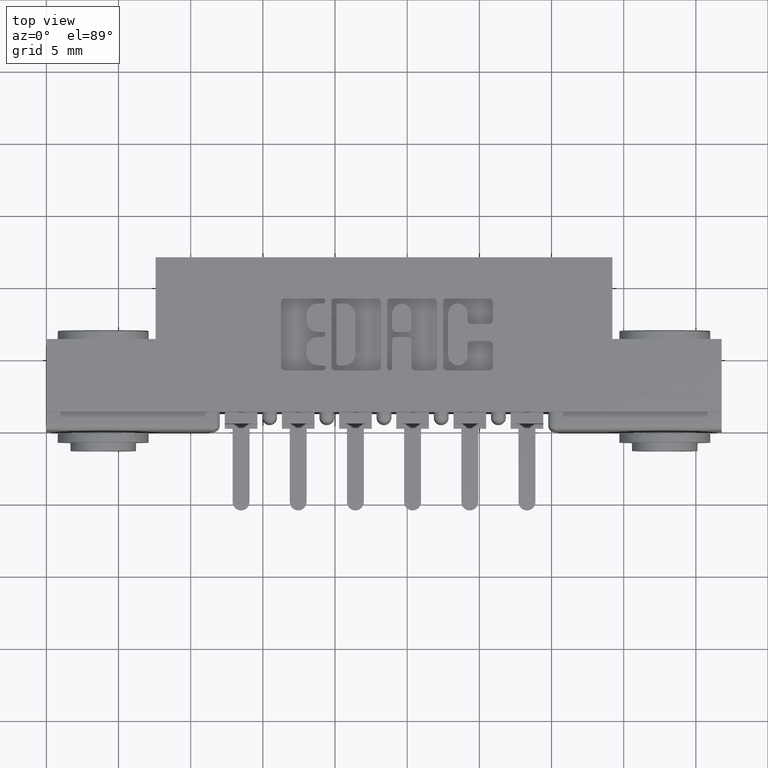
[diagram: clean part render]
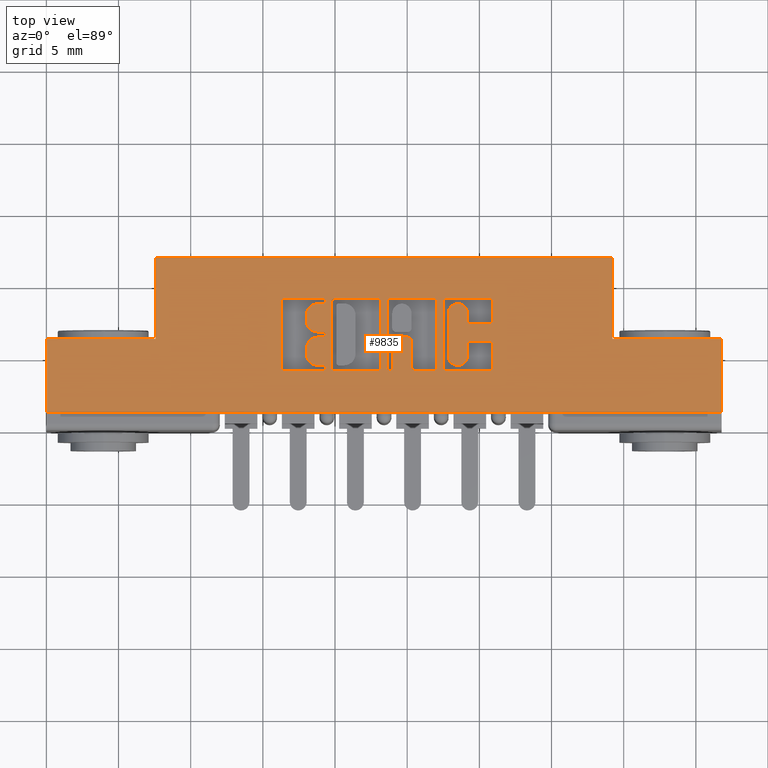
[diagram: same view with one face highlighted and labeled with its STEP entity id]
A machine part, top view. The second image highlights one B-rep face of the part: STEP entity #9835.
In plain terms, the highlighted planar face has unit normal (0, 0, -1).
Its self-contained STEP definition (entity closure, byte-faithful):
#2 = AXIS2_PLACEMENT_3D ( 'NONE', #10767, #9928, #2937 ) ;
#29 = CIRCLE ( 'NONE', #9185, 0.03141014465217454400 ) ;
#37 = CARTESIAN_POINT ( 'NONE',  ( 1.158293827176977600, 0.2909562271012335900, 0.0000000000000000000 ) ) ;
#66 = ORIENTED_EDGE ( 'NONE', *, *, #972, .F. ) ;
#85 = DIRECTION ( 'NONE',  ( -1.000000000000000000, 0.0000000000000000000, 0.0000000000000000000 ) ) ;
#90 = VERTEX_POINT ( 'NONE', #1101 ) ;
#115 = EDGE_CURVE ( 'NONE', #2119, #937, #9789, .T. ) ;
#134 = CIRCLE ( 'NONE', #6695, 0.006870969142657995000 ) ;
#160 = VERTEX_POINT ( 'NONE', #7551 ) ;
#186 = EDGE_CURVE ( 'NONE', #3596, #7757, #1127, .T. ) ;
#193 = DIRECTION ( 'NONE',  ( 1.000000000000000000, 0.0000000000000000000, 0.0000000000000000000 ) ) ;
#197 = AXIS2_PLACEMENT_3D ( 'NONE', #11165, #9494, #4167 ) ;
#216 = LINE ( 'NONE', #8390, #490 ) ;
#230 = VERTEX_POINT ( 'NONE', #7504 ) ;
#241 = AXIS2_PLACEMENT_3D ( 'NONE', #7334, #1249, #447 ) ;
#254 = LINE ( 'NONE', #8235, #7962 ) ;
#256 = LINE ( 'NONE', #8256, #4941 ) ;
#264 = FACE_BOUND ( 'NONE', #1898, .T. ) ;
#282 = ORIENTED_EDGE ( 'NONE', *, *, #7625, .F. ) ;
#326 = DIRECTION ( 'NONE',  ( 1.000000000000000000, 0.0000000000000000000, 0.0000000000000000000 ) ) ;
#365 = VERTEX_POINT ( 'NONE', #7738 ) ;
#395 = LINE ( 'NONE', #3843, #8628 ) ;
#406 = ORIENTED_EDGE ( 'NONE', *, *, #9091, .F. ) ;
#435 = EDGE_CURVE ( 'NONE', #1224, #4848, #2381, .T. ) ;
#441 = AXIS2_PLACEMENT_3D ( 'NONE', #2741, #9749, #6103 ) ;
#447 = DIRECTION ( 'NONE',  ( 1.000000000000000000, 0.0000000000000000000, 0.0000000000000000000 ) ) ;
#453 = DIRECTION ( 'NONE',  ( 0.0000000000000000000, -1.000000000000000000, 0.0000000000000000000 ) ) ;
#457 = AXIS2_PLACEMENT_3D ( 'NONE', #10255, #7732, #1539 ) ;
#460 = DIRECTION ( 'NONE',  ( -0.0000000000000000000, 0.0000000000000000000, 1.000000000000000000 ) ) ;
#468 = ORIENTED_EDGE ( 'NONE', *, *, #6072, .F. ) ;
#485 = VERTEX_POINT ( 'NONE', #9642 ) ;
#490 = VECTOR ( 'NONE', #1396, 39.37007874015748100 ) ;
#504 = CARTESIAN_POINT ( 'NONE',  ( 0.9295887114283312200, 0.3503410318342100000, 0.0000000000000000000 ) ) ;
#524 = VECTOR ( 'NONE', #4498, 39.37007874015748100 ) ;
#540 = VECTOR ( 'NONE', #9377, 39.37007874015748100 ) ;
#549 = ORIENTED_EDGE ( 'NONE', *, *, #11010, .F. ) ;
#566 = VECTOR ( 'NONE', #1109, 39.37007874015748100 ) ;
#571 = EDGE_CURVE ( 'NONE', #937, #7979, #1825, .T. ) ;
#585 = EDGE_CURVE ( 'NONE', #3293, #9052, #11269, .T. ) ;
#617 = VERTEX_POINT ( 'NONE', #5352 ) ;
#622 = VECTOR ( 'NONE', #6580, 39.37007874015748100 ) ;
#634 = DIRECTION ( 'NONE',  ( 0.0000000000000000000, 1.000000000000000000, -0.0000000000000000000 ) ) ;
#637 = VERTEX_POINT ( 'NONE', #2764 ) ;
#650 = CARTESIAN_POINT ( 'NONE',  ( 0.7610045756779980600, 0.1707142671046479000, 0.0000000000000000000 ) ) ;
#660 = CIRCLE ( 'NONE', #1926, 0.009815670203841039800 ) ;
#661 = CARTESIAN_POINT ( 'NONE',  ( 0.7541336065353102500, 0.2620000000000202700, 0.0000000000000000000 ) ) ;
#684 = EDGE_LOOP ( 'NONE', ( #3775, #2766, #7573, #8923, #9858, #11051, #10013, #9149, #7669, #7382, #10817, #910, #8126, #6589 ) ) ;
#685 = CARTESIAN_POINT ( 'NONE',  ( 0.9433306497136472200, 0.0000000000000000000, 0.0000000000000000000 ) ) ;
#697 = DIRECTION ( 'NONE',  ( 1.000000000000000000, 0.0000000000000000000, 0.0000000000000000000 ) ) ;
#720 = CARTESIAN_POINT ( 'NONE',  ( 0.0000000000000000000, 0.4729999999999999800, 0.0000000000000000000 ) ) ;
#728 = DIRECTION ( 'NONE',  ( 0.0000000000000000000, 1.000000000000000000, -0.0000000000000000000 ) ) ;
#769 = CARTESIAN_POINT ( 'NONE',  ( 0.0000000000000000000, 0.05099999999999999700, 0.0000000000000000000 ) ) ;
#772 = ORIENTED_EDGE ( 'NONE', *, *, #1240, .F. ) ;
#828 = CARTESIAN_POINT ( 'NONE',  ( 1.092038053301265700, 0.1638432979619831300, 0.0000000000000000000 ) ) ;
#843 = LINE ( 'NONE', #9636, #2655 ) ;
#846 = CARTESIAN_POINT ( 'NONE',  ( 0.6498421106199189200, 0.1638432979619849400, 0.0000000000000000000 ) ) ;
#850 = CARTESIAN_POINT ( 'NONE',  ( 1.122221239177999100, 0.2038421540424529300, 0.0000000000000000000 ) ) ;
#851 = CIRCLE ( 'NONE', #457, 0.03141014465218178200 ) ;
#891 = DIRECTION ( 'NONE',  ( 1.000000000000000000, 0.0000000000000000000, 0.0000000000000000000 ) ) ;
#910 = ORIENTED_EDGE ( 'NONE', *, *, #1816, .F. ) ;
#914 = ORIENTED_EDGE ( 'NONE', *, *, #8202, .F. ) ;
#937 = VERTEX_POINT ( 'NONE', #10056 ) ;
#972 = EDGE_CURVE ( 'NONE', #8061, #2438, #6912, .T. ) ;
#1029 = DIRECTION ( 'NONE',  ( -0.0000000000000000000, 0.0000000000000000000, 1.000000000000000000 ) ) ;
#1045 = ORIENTED_EDGE ( 'NONE', *, *, #10996, .F. ) ;
#1055 = VERTEX_POINT ( 'NONE', #650 ) ;
#1056 = DIRECTION ( 'NONE',  ( 0.0000000000000000000, 0.0000000000000000000, -1.000000000000000000 ) ) ;
#1097 = DIRECTION ( 'NONE',  ( 1.000000000000000000, 0.0000000000000000000, 0.0000000000000000000 ) ) ;
#1098 = CIRCLE ( 'NONE', #11077, 0.009815670203796511200 ) ;
#1100 = CARTESIAN_POINT ( 'NONE',  ( 1.082222383097458900, 0.3503410318342100000, 0.0000000000000000000 ) ) ;
#1101 = CARTESIAN_POINT ( 'NONE',  ( 0.7541336064153890700, 0.2551290308573567800, 0.0000000000000000000 ) ) ;
#1109 = DIRECTION ( 'NONE',  ( 1.000000000000000000, 0.0000000000000000000, 0.0000000000000000000 ) ) ;
#1114 = CARTESIAN_POINT ( 'NONE',  ( 0.7541336065353515500, 0.3532857328953861700, 0.0000000000000000000 ) ) ;
#1127 = CIRCLE ( 'NONE', #5899, 0.009815670203840084000 ) ;
#1131 = DIRECTION ( 'NONE',  ( 1.000000000000000000, 0.0000000000000000000, 0.0000000000000000000 ) ) ;
#1134 = VERTEX_POINT ( 'NONE', #1811 ) ;
#1200 = VERTEX_POINT ( 'NONE', #2742 ) ;
#1224 = VERTEX_POINT ( 'NONE', #37 ) ;
#1240 = EDGE_CURVE ( 'NONE', #8769, #3172, #8945, .T. ) ;
#1246 = VERTEX_POINT ( 'NONE', #4362 ) ;
#1249 = DIRECTION ( 'NONE',  ( -0.0000000000000000000, 0.0000000000000000000, 1.000000000000000000 ) ) ;
#1253 = EDGE_CURVE ( 'NONE', #10107, #4215, #4164, .T. ) ;
#1285 = VERTEX_POINT ( 'NONE', #8162 ) ;
#1290 = EDGE_CURVE ( 'NONE', #4215, #9331, #10588, .T. ) ;
#1305 = EDGE_CURVE ( 'NONE', #6060, #7967, #8667, .T. ) ;
#1321 = VERTEX_POINT ( 'NONE', #9003 ) ;
#1372 = DIRECTION ( 'NONE',  ( -0.0000000000000000000, -1.000000000000000000, -0.0000000000000000000 ) ) ;
#1377 = EDGE_CURVE ( 'NONE', #8281, #10974, #7306, .T. ) ;
#1396 = DIRECTION ( 'NONE',  ( -1.000000000000000000, 0.0000000000000000000, 0.0000000000000000000 ) ) ;
#1422 = CARTESIAN_POINT ( 'NONE',  ( -0.0000000000000000000, 0.2909562271012335900, 0.0000000000000000000 ) ) ;
#1443 = EDGE_CURVE ( 'NONE', #617, #8143, #4578, .T. ) ;
#1448 = CARTESIAN_POINT ( 'NONE',  ( 0.6400264404161156700, 0.1736589681657899100, 0.0000000000000000000 ) ) ;
#1456 = DIRECTION ( 'NONE',  ( 1.000000000000000000, 0.0000000000000000000, 0.0000000000000000000 ) ) ;
#1465 = DIRECTION ( 'NONE',  ( 1.000000000000000000, 0.0000000000000000000, 0.0000000000000000000 ) ) ;
#1504 = ORIENTED_EDGE ( 'NONE', *, *, #5172, .T. ) ;
#1518 = CARTESIAN_POINT ( 'NONE',  ( 0.9025956183678963700, 0.3601567020380510000, 0.0000000000000000000 ) ) ;
#1539 = DIRECTION ( 'NONE',  ( 1.000000000000000000, 0.0000000000000000000, 0.0000000000000000000 ) ) ;
#1615 = ORIENTED_EDGE ( 'NONE', *, *, #5111, .F. ) ;
#1626 = DIRECTION ( 'NONE',  ( -0.0000000000000000000, 0.0000000000000000000, 1.000000000000000000 ) ) ;
#1638 = AXIS2_PLACEMENT_3D ( 'NONE', #850, #8715, #5277 ) ;
#1643 = ORIENTED_EDGE ( 'NONE', *, *, #435, .F. ) ;
#1654 = CARTESIAN_POINT ( 'NONE',  ( 0.9025956183678282000, 0.3503410318342098900, 0.0000000000000000000 ) ) ;
#1665 = CARTESIAN_POINT ( 'NONE',  ( 0.9295887114283312200, 0.0000000000000000000, 0.0000000000000000000 ) ) ;
#1730 = DIRECTION ( 'NONE',  ( 1.000000000000000000, -0.0000000000000000000, 0.0000000000000000000 ) ) ;
#1769 = EDGE_LOOP ( 'NONE', ( #549, #772, #6414, #6158, #3465, #10356, #4662, #4700 ) ) ;
#1782 = DIRECTION ( 'NONE',  ( 1.000000000000000000, 0.0000000000000000000, 0.0000000000000000000 ) ) ;
#1802 = VECTOR ( 'NONE', #10739, 39.37007874015748100 ) ;
#1811 = CARTESIAN_POINT ( 'NONE',  ( 1.148478156973179200, 0.2038421540424529300, 0.0000000000000000000 ) ) ;
#1816 = EDGE_CURVE ( 'NONE', #3293, #6017, #134, .T. ) ;
#1825 = CIRCLE ( 'NONE', #2706, 0.009815670203787086500 ) ;
#1826 = AXIS2_PLACEMENT_3D ( 'NONE', #6116, #11313, #3375 ) ;
#1837 = AXIS2_PLACEMENT_3D ( 'NONE', #720, #1056, #5414 ) ;
#1869 = CARTESIAN_POINT ( 'NONE',  ( 0.7541336065353515500, 0.3601567020380326800, 0.0000000000000000000 ) ) ;
#1896 = LINE ( 'NONE', #10295, #8616 ) ;
#1898 = EDGE_LOOP ( 'NONE', ( #6988, #2913, #4558, #9803, #10766, #406, #9904, #10678, #5652, #1504, #10569, #1045, #4798, #10533, #6349, #7975, #914, #4945, #1615, #6331, #9107 ) ) ;
#1911 = AXIS2_PLACEMENT_3D ( 'NONE', #1114, #1029, #2828 ) ;
#1926 = AXIS2_PLACEMENT_3D ( 'NONE', #1654, #8534, #6073 ) ;
#1956 = CARTESIAN_POINT ( 'NONE',  ( 0.7406370600051257500, 0.3150046191005197400, 0.0000000000000000000 ) ) ;
#1965 = DIRECTION ( 'NONE',  ( 1.000000000000000000, 0.0000000000000000000, 0.0000000000000000000 ) ) ;
#1967 = CARTESIAN_POINT ( 'NONE',  ( 1.217678631909972400, 0.3503410318341947400, 0.0000000000000000000 ) ) ;
#1974 = ORIENTED_EDGE ( 'NONE', *, *, #2601, .F. ) ;
#1986 = CARTESIAN_POINT ( 'NONE',  ( -0.0000000000000000000, 0.1638432979619831300, 0.0000000000000000000 ) ) ;
#1987 = AXIS2_PLACEMENT_3D ( 'NONE', #3039, #10141, #5703 ) ;
#1990 = ORIENTED_EDGE ( 'NONE', *, *, #3891, .T. ) ;
#1991 = CARTESIAN_POINT ( 'NONE',  ( -2.111779678676719100E-014, 0.1775852362472204700, 0.0000000000000000000 ) ) ;
#1998 = LINE ( 'NONE', #4738, #7493 ) ;
#2027 = VECTOR ( 'NONE', #7860, 39.37007874015748100 ) ;
#2051 = DIRECTION ( 'NONE',  ( -0.0000000000000000000, 0.0000000000000000000, 1.000000000000000000 ) ) ;
#2110 = EDGE_CURVE ( 'NONE', #2426, #8143, #6148, .T. ) ;
#2119 = VERTEX_POINT ( 'NONE', #8565 ) ;
#2183 = EDGE_CURVE ( 'NONE', #6761, #2438, #5033, .T. ) ;
#2221 = EDGE_CURVE ( 'NONE', #10968, #1246, #6240, .T. ) ;
#2260 = VERTEX_POINT ( 'NONE', #2680 ) ;
#2261 = CARTESIAN_POINT ( 'NONE',  ( 0.9394043816321276900, 0.3503410318342100000, 0.0000000000000000000 ) ) ;
#2299 = ORIENTED_EDGE ( 'NONE', *, *, #8778, .F. ) ;
#2311 = DIRECTION ( 'NONE',  ( 0.0000000000000000000, -1.000000000000000000, 0.0000000000000000000 ) ) ;
#2364 = EDGE_CURVE ( 'NONE', #6711, #1055, #8437, .T. ) ;
#2365 = CARTESIAN_POINT ( 'NONE',  ( 0.7867707099630104600, 0.3601567020380510000, 0.0000000000000000000 ) ) ;
#2381 = LINE ( 'NONE', #1422, #6788 ) ;
#2383 = DIRECTION ( 'NONE',  ( -0.0000000000000000000, 0.0000000000000000000, 1.000000000000000000 ) ) ;
#2415 = AXIS2_PLACEMENT_3D ( 'NONE', #11362, #4496, #1782 ) ;
#2426 = VERTEX_POINT ( 'NONE', #3095 ) ;
#2438 = VERTEX_POINT ( 'NONE', #3893 ) ;
#2452 = VERTEX_POINT ( 'NONE', #8321 ) ;
#2505 = VECTOR ( 'NONE', #2954, 39.37007874015748100 ) ;
#2532 = VERTEX_POINT ( 'NONE', #7532 ) ;
#2536 = VECTOR ( 'NONE', #7988, 39.37007874015748100 ) ;
#2576 = CARTESIAN_POINT ( 'NONE',  ( 1.158293827176977600, 0.3007718973050451700, 0.0000000000000000000 ) ) ;
#2585 = ORIENTED_EDGE ( 'NONE', *, *, #115, .F. ) ;
#2591 = CARTESIAN_POINT ( 'NONE',  ( 1.055229290037011900, 0.3503410318342102800, 0.0000000000000000000 ) ) ;
#2601 = EDGE_CURVE ( 'NONE', #10117, #10787, #8734, .T. ) ;
#2612 = VERTEX_POINT ( 'NONE', #1448 ) ;
#2655 = VECTOR ( 'NONE', #1730, 39.37007874015748100 ) ;
#2680 = CARTESIAN_POINT ( 'NONE',  ( 1.207862961706134500, 0.1638432979619831300, 0.0000000000000000000 ) ) ;
#2706 = AXIS2_PLACEMENT_3D ( 'NONE', #9677, #1626, #4471 ) ;
#2723 = CARTESIAN_POINT ( 'NONE',  ( 1.207862961706167400, 0.2909562271012335900, 0.0000000000000000000 ) ) ;
#2733 = LINE ( 'NONE', #8987, #7142 ) ;
#2741 = CARTESIAN_POINT ( 'NONE',  ( 1.092038053301265700, 0.1736589681657899100, 0.0000000000000000000 ) ) ;
#2742 = CARTESIAN_POINT ( 'NONE',  ( 1.217678631909972400, 0.3007718973050385600, 0.0000000000000000000 ) ) ;
#2752 = CIRCLE ( 'NONE', #3241, 0.009815670203805798900 ) ;
#2764 = CARTESIAN_POINT ( 'NONE',  ( 0.7541336065353102500, 0.2688709691426837700, 0.0000000000000000000 ) ) ;
#2766 = ORIENTED_EDGE ( 'NONE', *, *, #11162, .F. ) ;
#2781 = CARTESIAN_POINT ( 'NONE',  ( 0.0000000000000000000, 0.3601567020380510000, 0.0000000000000000000 ) ) ;
#2791 = CARTESIAN_POINT ( 'NONE',  ( 0.0000000000000000000, 0.3601567020380510000, 0.0000000000000000000 ) ) ;
#2797 = EDGE_CURVE ( 'NONE', #6761, #2532, #10785, .T. ) ;
#2798 = CARTESIAN_POINT ( 'NONE',  ( 0.9025956183678624000, 0.1736589681657899100, 0.0000000000000000000 ) ) ;
#2819 = ORIENTED_EDGE ( 'NONE', *, *, #1290, .F. ) ;
#2828 = DIRECTION ( 'NONE',  ( 1.000000000000000000, 0.0000000000000000000, 0.0000000000000000000 ) ) ;
#2848 = VERTEX_POINT ( 'NONE', #9650 ) ;
#2913 = ORIENTED_EDGE ( 'NONE', *, *, #9655, .F. ) ;
#2918 = VECTOR ( 'NONE', #8901, 39.37007874015748100 ) ;
#2937 = DIRECTION ( 'NONE',  ( 1.000000000000000000, 0.0000000000000000000, 0.0000000000000000000 ) ) ;
#2954 = DIRECTION ( 'NONE',  ( 1.000000000000000000, 0.0000000000000000000, 0.0000000000000000000 ) ) ;
#2986 = LINE ( 'NONE', #9521, #7505 ) ;
#2993 = EDGE_CURVE ( 'NONE', #10555, #637, #11317, .T. ) ;
#3009 = CARTESIAN_POINT ( 'NONE',  ( 1.055229290037014200, 0.3601567020380065400, 0.0000000000000000000 ) ) ;
#3039 = CARTESIAN_POINT ( 'NONE',  ( 0.7541336065353515500, 0.3532857328953861700, 0.0000000000000000000 ) ) ;
#3046 = DIRECTION ( 'NONE',  ( 1.000000000000000000, 0.0000000000000000000, 0.0000000000000000000 ) ) ;
#3086 = CARTESIAN_POINT ( 'NONE',  ( 0.7092269153529280300, 0.0000000000000000000, 0.0000000000000000000 ) ) ;
#3095 = CARTESIAN_POINT ( 'NONE',  ( 0.7406370600050843400, 0.2551290308573567800, 0.0000000000000000000 ) ) ;
#3107 = EDGE_CURVE ( 'NONE', #5942, #6711, #1998, .T. ) ;
#3172 = VERTEX_POINT ( 'NONE', #5555 ) ;
#3185 = VERTEX_POINT ( 'NONE', #5852 ) ;
#3191 = VECTOR ( 'NONE', #9459, 39.37007874015748100 ) ;
#3241 = AXIS2_PLACEMENT_3D ( 'NONE', #9766, #4540, #3578 ) ;
#3293 = VERTEX_POINT ( 'NONE', #4816 ) ;
#3302 = VERTEX_POINT ( 'NONE', #10890 ) ;
#3308 = LINE ( 'NONE', #4433, #524 ) ;
#3322 = CARTESIAN_POINT ( 'NONE',  ( 0.9433306497136472200, 0.2453133606535455300, 0.0000000000000000000 ) ) ;
#3375 = DIRECTION ( 'NONE',  ( 1.000000000000000000, 0.0000000000000000000, 0.0000000000000000000 ) ) ;
#3404 = VECTOR ( 'NONE', #634, 39.37007874015748100 ) ;
#3465 = ORIENTED_EDGE ( 'NONE', *, *, #9995, .F. ) ;
#3471 = CARTESIAN_POINT ( 'NONE',  ( 0.0000000000000000000, 0.3601567020380326800, 0.0000000000000000000 ) ) ;
#3478 = CARTESIAN_POINT ( 'NONE',  ( 0.7541336065353102500, 0.2620000000000202700, 0.0000000000000000000 ) ) ;
#3495 = DIRECTION ( 'NONE',  ( -0.0000000000000000000, 0.0000000000000000000, 1.000000000000000000 ) ) ;
#3572 = VERTEX_POINT ( 'NONE', #10676 ) ;
#3578 = DIRECTION ( 'NONE',  ( 1.000000000000000000, 0.0000000000000000000, 0.0000000000000000000 ) ) ;
#3596 = VERTEX_POINT ( 'NONE', #1967 ) ;
#3614 = LINE ( 'NONE', #1991, #6235 ) ;
#3647 = CARTESIAN_POINT ( 'NONE',  ( 0.7092269153529097100, 0.3002811137948582800, 0.0000000000000000000 ) ) ;
#3719 = CARTESIAN_POINT ( 'NONE',  ( 0.4729999999999998600, 0.05099999999999999700, 0.0000000000000000000 ) ) ;
#3756 = DIRECTION ( 'NONE',  ( -1.000000000000000000, -1.189163988687022500E-013, 0.0000000000000000000 ) ) ;
#3768 = EDGE_CURVE ( 'NONE', #1285, #1321, #4345, .T. ) ;
#3775 = ORIENTED_EDGE ( 'NONE', *, *, #1305, .T. ) ;
#3789 = VECTOR ( 'NONE', #2311, 39.37007874015748100 ) ;
#3843 = CARTESIAN_POINT ( 'NONE',  ( 1.148478156973179200, 0.0000000000000000000, 0.0000000000000000000 ) ) ;
#3848 = CIRCLE ( 'NONE', #241, 0.009815670203803203800 ) ;
#3891 = EDGE_CURVE ( 'NONE', #3572, #9163, #10883, .T. ) ;
#3893 = CARTESIAN_POINT ( 'NONE',  ( 1.095964321382818700, 0.3201578459575295000, 0.0000000000000000000 ) ) ;
#3961 = LINE ( 'NONE', #3719, #7944 ) ;
#4005 = CARTESIAN_POINT ( 'NONE',  ( 1.095964321382818700, 0.2038421540424529300, 0.0000000000000000000 ) ) ;
#4026 = CIRCLE ( 'NONE', #6389, 0.009815670203806891800 ) ;
#4044 = CARTESIAN_POINT ( 'NONE',  ( 1.082222383097458900, 0.0000000000000000000, 0.0000000000000000000 ) ) ;
#4133 = LINE ( 'NONE', #8471, #540 ) ;
#4141 = EDGE_CURVE ( 'NONE', #10787, #10500, #4620, .T. ) ;
#4164 = LINE ( 'NONE', #6137, #1802 ) ;
#4167 = DIRECTION ( 'NONE',  ( 1.000000000000000000, 0.0000000000000000000, 0.0000000000000000000 ) ) ;
#4179 = EDGE_CURVE ( 'NONE', #8947, #11213, #9512, .T. ) ;
#4196 = DIRECTION ( 'NONE',  ( -0.0000000000000000000, 1.000000000000000000, -0.0000000000000000000 ) ) ;
#4215 = VERTEX_POINT ( 'NONE', #8972 ) ;
#4246 = VERTEX_POINT ( 'NONE', #5527 ) ;
#4257 = EDGE_CURVE ( 'NONE', #10156, #485, #4613, .T. ) ;
#4283 = ORIENTED_EDGE ( 'NONE', *, *, #2797, .F. ) ;
#4345 = CIRCLE ( 'NONE', #4658, 0.009815670203796920600 ) ;
#4362 = CARTESIAN_POINT ( 'NONE',  ( 1.005660155507786000, 0.1638432979619845200, 0.0000000000000000000 ) ) ;
#4367 = AXIS2_PLACEMENT_3D ( 'NONE', #6539, #4664, #326 ) ;
#4409 = CIRCLE ( 'NONE', #7239, 0.006870969142662229500 ) ;
#4433 = CARTESIAN_POINT ( 'NONE',  ( 1.842000000000000700, 0.4729999999999999800, 0.0000000000000000000 ) ) ;
#4471 = DIRECTION ( 'NONE',  ( 1.000000000000000000, 0.0000000000000000000, 0.0000000000000000000 ) ) ;
#4496 = DIRECTION ( 'NONE',  ( -0.0000000000000000000, 0.0000000000000000000, 1.000000000000000000 ) ) ;
#4498 = DIRECTION ( 'NONE',  ( -0.0000000000000000000, -1.000000000000000000, -0.0000000000000000000 ) ) ;
#4540 = DIRECTION ( 'NONE',  ( -0.0000000000000000000, 0.0000000000000000000, 1.000000000000000000 ) ) ;
#4558 = ORIENTED_EDGE ( 'NONE', *, *, #5207, .T. ) ;
#4577 = EDGE_CURVE ( 'NONE', #9846, #9716, #7602, .T. ) ;
#4578 = LINE ( 'NONE', #3086, #7184 ) ;
#4608 = CARTESIAN_POINT ( 'NONE',  ( 1.065044960240807000, 0.1736589681657807500, 0.0000000000000000000 ) ) ;
#4613 = CIRCLE ( 'NONE', #2, 0.009815670203788042300 ) ;
#4617 = CARTESIAN_POINT ( 'NONE',  ( 1.217678631909940400, 0.0000000000000000000, 0.0000000000000000000 ) ) ;
#4620 = CIRCLE ( 'NONE', #441, 0.009815670203806754800 ) ;
#4631 = VERTEX_POINT ( 'NONE', #7744 ) ;
#4647 = DIRECTION ( 'NONE',  ( 1.000000000000000000, 0.0000000000000000000, 0.0000000000000000000 ) ) ;
#4649 = LINE ( 'NONE', #4985, #8315 ) ;
#4658 = AXIS2_PLACEMENT_3D ( 'NONE', #5759, #460, #10205 ) ;
#4662 = ORIENTED_EDGE ( 'NONE', *, *, #8275, .F. ) ;
#4664 = DIRECTION ( 'NONE',  ( -0.0000000000000000000, 0.0000000000000000000, 1.000000000000000000 ) ) ;
#4700 = ORIENTED_EDGE ( 'NONE', *, *, #1377, .F. ) ;
#4732 = AXIS2_PLACEMENT_3D ( 'NONE', #5052, #2383, #5017 ) ;
#4738 = CARTESIAN_POINT ( 'NONE',  ( -1.072942192934067400E-015, 0.1638432979619806600, 0.0000000000000000000 ) ) ;
#4798 = ORIENTED_EDGE ( 'NONE', *, *, #2364, .F. ) ;
#4803 = CARTESIAN_POINT ( 'NONE',  ( 1.082222383097458900, 0.1736589681657899100, 0.0000000000000000000 ) ) ;
#4816 = CARTESIAN_POINT ( 'NONE',  ( 0.9295887114283312200, 0.1707142671046479000, 0.0000000000000000000 ) ) ;
#4848 = VERTEX_POINT ( 'NONE', #2723 ) ;
#4895 = CARTESIAN_POINT ( 'NONE',  ( 0.0000000000000000000, 0.1638432979619845200, 0.0000000000000000000 ) ) ;
#4941 = VECTOR ( 'NONE', #5583, 39.37007874015748100 ) ;
#4945 = ORIENTED_EDGE ( 'NONE', *, *, #4577, .F. ) ;
#4958 = CARTESIAN_POINT ( 'NONE',  ( 1.092038053301299700, 0.3601567020380510000, 0.0000000000000000000 ) ) ;
#4968 = CIRCLE ( 'NONE', #8626, 0.009815670203796237100 ) ;
#4985 = CARTESIAN_POINT ( 'NONE',  ( 0.6400264404161156700, 0.0000000000000000000, 0.0000000000000000000 ) ) ;
#5000 = VECTOR ( 'NONE', #728, 39.37007874015748100 ) ;
#5003 = DIRECTION ( 'NONE',  ( 1.000000000000000000, 0.0000000000000000000, 0.0000000000000000000 ) ) ;
#5017 = DIRECTION ( 'NONE',  ( 1.000000000000000000, 0.0000000000000000000, 0.0000000000000000000 ) ) ;
#5033 = CIRCLE ( 'NONE', #2415, 0.02625691779517367100 ) ;
#5037 = CARTESIAN_POINT ( 'NONE',  ( 1.092038053301299700, 0.3503410318342100000, 0.0000000000000000000 ) ) ;
#5052 = CARTESIAN_POINT ( 'NONE',  ( 0.6498421106199383500, 0.3503410318342100000, 0.0000000000000000000 ) ) ;
#5062 = VERTEX_POINT ( 'NONE', #9130 ) ;
#5111 = EDGE_CURVE ( 'NONE', #10690, #9846, #8133, .T. ) ;
#5129 = EDGE_CURVE ( 'NONE', #9040, #10117, #6254, .T. ) ;
#5152 = DIRECTION ( 'NONE',  ( 1.000000000000000000, 0.0000000000000000000, 0.0000000000000000000 ) ) ;
#5172 = EDGE_CURVE ( 'NONE', #617, #5062, #851, .T. ) ;
#5178 = CARTESIAN_POINT ( 'NONE',  ( 1.842000000000000700, 0.2499999999999999700, 0.0000000000000000000 ) ) ;
#5207 = EDGE_CURVE ( 'NONE', #9275, #5523, #29, .T. ) ;
#5215 = VERTEX_POINT ( 'NONE', #7585 ) ;
#5261 = CARTESIAN_POINT ( 'NONE',  ( 0.9394043816321276900, 0.3601567020380065400, 0.0000000000000000000 ) ) ;
#5269 = EDGE_CURVE ( 'NONE', #3572, #10107, #843, .T. ) ;
#5277 = DIRECTION ( 'NONE',  ( 1.000000000000000000, 0.0000000000000000000, 0.0000000000000000000 ) ) ;
#5283 = DIRECTION ( 'NONE',  ( 0.0000000000000000000, 1.000000000000000000, -0.0000000000000000000 ) ) ;
#5288 = EDGE_CURVE ( 'NONE', #8061, #1134, #10463, .T. ) ;
#5348 = ORIENTED_EDGE ( 'NONE', *, *, #8049, .F. ) ;
#5352 = CARTESIAN_POINT ( 'NONE',  ( 0.7092269153529280300, 0.2089953808994903200, 0.0000000000000000000 ) ) ;
#5354 = CARTESIAN_POINT ( 'NONE',  ( 0.7610045756779737500, 0.2620000000000202700, 0.0000000000000000000 ) ) ;
#5409 = CIRCLE ( 'NONE', #5490, 0.009815670203811535700 ) ;
#5414 = DIRECTION ( 'NONE',  ( -1.000000000000000000, 0.0000000000000000000, -0.0000000000000000000 ) ) ;
#5418 = ORIENTED_EDGE ( 'NONE', *, *, #7437, .F. ) ;
#5480 = EDGE_CURVE ( 'NONE', #365, #8769, #4026, .T. ) ;
#5490 = AXIS2_PLACEMENT_3D ( 'NONE', #2576, #6969, #9658 ) ;
#5491 = AXIS2_PLACEMENT_3D ( 'NONE', #2591, #7320, #10517 ) ;
#5523 = VERTEX_POINT ( 'NONE', #9970 ) ;
#5527 = CARTESIAN_POINT ( 'NONE',  ( 0.7541336064154146000, 0.1775852362473101500, 0.0000000000000000000 ) ) ;
#5555 = CARTESIAN_POINT ( 'NONE',  ( 0.9124112885716693100, 0.3503410318342100000, 0.0000000000000000000 ) ) ;
#5581 = AXIS2_PLACEMENT_3D ( 'NONE', #1956, #8094, #5688 ) ;
#5583 = DIRECTION ( 'NONE',  ( 1.000000000000000000, 0.0000000000000000000, 0.0000000000000000000 ) ) ;
#5594 = CARTESIAN_POINT ( 'NONE',  ( 1.158293827176967400, 0.2433502266127574900, 0.0000000000000000000 ) ) ;
#5626 = DIRECTION ( 'NONE',  ( 1.000000000000000000, 6.548587621710595000E-015, 0.0000000000000000000 ) ) ;
#5652 = ORIENTED_EDGE ( 'NONE', *, *, #1443, .F. ) ;
#5674 = CARTESIAN_POINT ( 'NONE',  ( 1.207862961706132300, 0.3503410318342108900, 0.0000000000000000000 ) ) ;
#5688 = DIRECTION ( 'NONE',  ( 1.000000000000000000, 0.0000000000000000000, 0.0000000000000000000 ) ) ;
#5703 = DIRECTION ( 'NONE',  ( 1.000000000000000000, 0.0000000000000000000, 0.0000000000000000000 ) ) ;
#5759 = CARTESIAN_POINT ( 'NONE',  ( 0.9860288151001880300, 0.2453133606535527200, 0.0000000000000000000 ) ) ;
#5789 = LINE ( 'NONE', #1986, #9864 ) ;
#5852 = CARTESIAN_POINT ( 'NONE',  ( 0.7092269153529097100, 0.3150046191005197400, 0.0000000000000000000 ) ) ;
#5884 = DIRECTION ( 'NONE',  ( -0.0000000000000000000, 0.0000000000000000000, 1.000000000000000000 ) ) ;
#5899 = AXIS2_PLACEMENT_3D ( 'NONE', #5674, #8298, #3046 ) ;
#5929 = CARTESIAN_POINT ( 'NONE',  ( 1.065044960240807000, 0.3503410318342009600, 0.0000000000000000000 ) ) ;
#5930 = VERTEX_POINT ( 'NONE', #5178 ) ;
#5942 = VERTEX_POINT ( 'NONE', #846 ) ;
#5976 = EDGE_CURVE ( 'NONE', #4246, #5062, #3614, .T. ) ;
#5987 = VECTOR ( 'NONE', #6835, 39.37007874015748100 ) ;
#6017 = VERTEX_POINT ( 'NONE', #7951 ) ;
#6060 = VERTEX_POINT ( 'NONE', #5261 ) ;
#6072 = EDGE_CURVE ( 'NONE', #2532, #1224, #5409, .T. ) ;
#6073 = DIRECTION ( 'NONE',  ( 1.000000000000000000, 0.0000000000000000000, 0.0000000000000000000 ) ) ;
#6103 = DIRECTION ( 'NONE',  ( 1.000000000000000000, 0.0000000000000000000, 0.0000000000000000000 ) ) ;
#6116 = CARTESIAN_POINT ( 'NONE',  ( 0.7406370600050843400, 0.2237188862052004700, 0.0000000000000000000 ) ) ;
#6137 = CARTESIAN_POINT ( 'NONE',  ( 0.2979999999999999900, 0.2499999999999999700, 0.0000000000000000000 ) ) ;
#6146 = EDGE_LOOP ( 'NONE', ( #282, #1643, #468, #4283, #9305, #66, #9461, #9146, #10672, #5348, #7893, #2585, #10268, #6843, #8455, #1974, #9809, #2299, #11342, #11034 ) ) ;
#6148 = CIRCLE ( 'NONE', #1826, 0.03141014465215624000 ) ;
#6158 = ORIENTED_EDGE ( 'NONE', *, *, #10150, .F. ) ;
#6177 = DIRECTION ( 'NONE',  ( 0.0000000000000000000, -1.000000000000000000, 0.0000000000000000000 ) ) ;
#6193 = EDGE_CURVE ( 'NONE', #5215, #3185, #6767, .T. ) ;
#6195 = ORIENTED_EDGE ( 'NONE', *, *, #10557, .F. ) ;
#6235 = VECTOR ( 'NONE', #3756, 39.37007874015748100 ) ;
#6240 = CIRCLE ( 'NONE', #7713, 0.009815670203803340800 ) ;
#6254 = CIRCLE ( 'NONE', #8385, 0.009815670203840902800 ) ;
#6289 = CARTESIAN_POINT ( 'NONE',  ( -0.0000000000000000000, 0.3601567020380065400, 0.0000000000000000000 ) ) ;
#6331 = ORIENTED_EDGE ( 'NONE', *, *, #9449, .F. ) ;
#6349 = ORIENTED_EDGE ( 'NONE', *, *, #7205, .F. ) ;
#6353 = FACE_BOUND ( 'NONE', #1769, .T. ) ;
#6389 = AXIS2_PLACEMENT_3D ( 'NONE', #2798, #7134, #1965 ) ;
#6395 = CARTESIAN_POINT ( 'NONE',  ( 0.7541336064154146000, 0.1638432979619856000, 0.0000000000000000000 ) ) ;
#6414 = ORIENTED_EDGE ( 'NONE', *, *, #5480, .F. ) ;
#6417 = CARTESIAN_POINT ( 'NONE',  ( 0.7610045756780000600, 0.3532857328953861700, 0.0000000000000000000 ) ) ;
#6434 = CIRCLE ( 'NONE', #197, 0.009815670203840902800 ) ;
#6457 = CARTESIAN_POINT ( 'NONE',  ( -0.0000000000000000000, 0.2551290308573567800, 0.0000000000000000000 ) ) ;
#6459 = VERTEX_POINT ( 'NONE', #3322 ) ;
#6539 = CARTESIAN_POINT ( 'NONE',  ( 0.7867707099629762700, 0.1736589681657899100, 0.0000000000000000000 ) ) ;
#6580 = DIRECTION ( 'NONE',  ( -1.000000000000000000, 0.0000000000000000000, 0.0000000000000000000 ) ) ;
#6589 = ORIENTED_EDGE ( 'NONE', *, *, #9481, .F. ) ;
#6601 = CIRCLE ( 'NONE', #8138, 0.009815670203806345400 ) ;
#6618 = FACE_OUTER_BOUND ( 'NONE', #11202, .T. ) ;
#6695 = AXIS2_PLACEMENT_3D ( 'NONE', #10932, #8232, #9099 ) ;
#6711 = VERTEX_POINT ( 'NONE', #6395 ) ;
#6720 = CIRCLE ( 'NONE', #5491, 0.009815670203795690700 ) ;
#6732 = CARTESIAN_POINT ( 'NONE',  ( 0.7092269153529280300, 0.2237188862052004700, 0.0000000000000000000 ) ) ;
#6750 = VERTEX_POINT ( 'NONE', #8995 ) ;
#6760 = DIRECTION ( 'NONE',  ( -0.0000000000000000000, 0.0000000000000000000, 1.000000000000000000 ) ) ;
#6761 = VERTEX_POINT ( 'NONE', #8933 ) ;
#6767 = CIRCLE ( 'NONE', #5581, 0.03141014465221592800 ) ;
#6773 = VECTOR ( 'NONE', #10478, 39.37007874015748100 ) ;
#6777 = CARTESIAN_POINT ( 'NONE',  ( 0.9958444853039849500, 0.0000000000000000000, 0.0000000000000000000 ) ) ;
#6782 = EDGE_CURVE ( 'NONE', #230, #11213, #4968, .T. ) ;
#6788 = VECTOR ( 'NONE', #1465, 39.37007874015748100 ) ;
#6835 = DIRECTION ( 'NONE',  ( -1.000000000000000000, 0.0000000000000000000, 0.0000000000000000000 ) ) ;
#6843 = ORIENTED_EDGE ( 'NONE', *, *, #7366, .F. ) ;
#6858 = EDGE_CURVE ( 'NONE', #4631, #6459, #3848, .T. ) ;
#6912 = LINE ( 'NONE', #7456, #5000 ) ;
#6969 = DIRECTION ( 'NONE',  ( -0.0000000000000000000, 0.0000000000000000000, 1.000000000000000000 ) ) ;
#6971 = CARTESIAN_POINT ( 'NONE',  ( 0.9124112885716693100, 0.0000000000000000000, 0.0000000000000000000 ) ) ;
#6988 = ORIENTED_EDGE ( 'NONE', *, *, #6193, .T. ) ;
#7014 = CARTESIAN_POINT ( 'NONE',  ( 0.0000000000000000000, 0.4729999999999999800, 0.0000000000000000000 ) ) ;
#7036 = CIRCLE ( 'NONE', #1911, 0.006870969142648570200 ) ;
#7132 = CARTESIAN_POINT ( 'NONE',  ( 1.544000000000000700, 0.4729999999999999800, 0.0000000000000000000 ) ) ;
#7134 = DIRECTION ( 'NONE',  ( -0.0000000000000000000, 0.0000000000000000000, 1.000000000000000000 ) ) ;
#7142 = VECTOR ( 'NONE', #4647, 39.37007874015748100 ) ;
#7184 = VECTOR ( 'NONE', #9192, 39.37007874015748100 ) ;
#7205 = EDGE_CURVE ( 'NONE', #2612, #5942, #2752, .T. ) ;
#7239 = AXIS2_PLACEMENT_3D ( 'NONE', #9322, #5884, #5003 ) ;
#7275 = EDGE_CURVE ( 'NONE', #5930, #10952, #3308, .T. ) ;
#7299 = EDGE_CURVE ( 'NONE', #2260, #2119, #6601, .T. ) ;
#7306 = LINE ( 'NONE', #2791, #2918 ) ;
#7320 = DIRECTION ( 'NONE',  ( -0.0000000000000000000, 0.0000000000000000000, 1.000000000000000000 ) ) ;
#7334 = CARTESIAN_POINT ( 'NONE',  ( 0.9531463199174504700, 0.2453133606535455300, 0.0000000000000000000 ) ) ;
#7366 = EDGE_CURVE ( 'NONE', #10500, #2260, #2733, .T. ) ;
#7382 = ORIENTED_EDGE ( 'NONE', *, *, #6858, .T. ) ;
#7437 = EDGE_CURVE ( 'NONE', #10952, #9163, #3961, .T. ) ;
#7450 = DIRECTION ( 'NONE',  ( 1.000000000000000000, 0.0000000000000000000, 0.0000000000000000000 ) ) ;
#7456 = CARTESIAN_POINT ( 'NONE',  ( 1.095964321382818700, 0.0000000000000000000, 0.0000000000000000000 ) ) ;
#7479 = DIRECTION ( 'NONE',  ( -0.0000000000000000000, 0.0000000000000000000, 1.000000000000000000 ) ) ;
#7493 = VECTOR ( 'NONE', #5626, 39.37007874015748100 ) ;
#7504 = CARTESIAN_POINT ( 'NONE',  ( 1.055229290037010800, 0.1638432979619845200, 0.0000000000000000000 ) ) ;
#7505 = VECTOR ( 'NONE', #4196, 39.37007874015748100 ) ;
#7532 = CARTESIAN_POINT ( 'NONE',  ( 1.148478156973166100, 0.3007718973050451700, 0.0000000000000000000 ) ) ;
#7542 = CARTESIAN_POINT ( 'NONE',  ( 1.842000000000000700, 0.05099999999999999700, 0.0000000000000000000 ) ) ;
#7551 = CARTESIAN_POINT ( 'NONE',  ( 0.7541336065353516600, 0.3464147637527356100, 0.0000000000000000000 ) ) ;
#7573 = ORIENTED_EDGE ( 'NONE', *, *, #4179, .T. ) ;
#7585 = CARTESIAN_POINT ( 'NONE',  ( 0.7406370600051257500, 0.3464147637527356100, 0.0000000000000000000 ) ) ;
#7602 = LINE ( 'NONE', #3471, #5987 ) ;
#7625 = EDGE_CURVE ( 'NONE', #4848, #1200, #9029, .T. ) ;
#7645 = CARTESIAN_POINT ( 'NONE',  ( 1.207862961706167400, 0.3007718973050385600, 0.0000000000000000000 ) ) ;
#7658 = LINE ( 'NONE', #10575, #2027 ) ;
#7669 = ORIENTED_EDGE ( 'NONE', *, *, #10072, .T. ) ;
#7713 = AXIS2_PLACEMENT_3D ( 'NONE', #9641, #10529, #891 ) ;
#7716 = VECTOR ( 'NONE', #85, 39.37007874015748100 ) ;
#7732 = DIRECTION ( 'NONE',  ( -0.0000000000000000000, 0.0000000000000000000, 1.000000000000000000 ) ) ;
#7738 = CARTESIAN_POINT ( 'NONE',  ( 0.9025956183678624000, 0.1638432979619831300, 0.0000000000000000000 ) ) ;
#7744 = CARTESIAN_POINT ( 'NONE',  ( 0.9531463199174504700, 0.2551290308573486200, 0.0000000000000000000 ) ) ;
#7757 = VERTEX_POINT ( 'NONE', #8710 ) ;
#7805 = VERTEX_POINT ( 'NONE', #8804 ) ;
#7838 = CARTESIAN_POINT ( 'NONE',  ( 1.065044960240807000, 0.0000000000000000000, 0.0000000000000000000 ) ) ;
#7843 = VECTOR ( 'NONE', #8132, 39.37007874015748100 ) ;
#7848 = ORIENTED_EDGE ( 'NONE', *, *, #7275, .F. ) ;
#7849 = DIRECTION ( 'NONE',  ( 1.000000000000000000, 0.0000000000000000000, 0.0000000000000000000 ) ) ;
#7860 = DIRECTION ( 'NONE',  ( 1.000000000000000000, -0.0000000000000000000, 0.0000000000000000000 ) ) ;
#7870 = CARTESIAN_POINT ( 'NONE',  ( 0.7769550397591695700, 0.0000000000000000000, 0.0000000000000000000 ) ) ;
#7893 = ORIENTED_EDGE ( 'NONE', *, *, #571, .F. ) ;
#7944 = VECTOR ( 'NONE', #9824, 39.37007874015748100 ) ;
#7951 = CARTESIAN_POINT ( 'NONE',  ( 0.9433306497136472200, 0.1707142671046479000, 0.0000000000000000000 ) ) ;
#7962 = VECTOR ( 'NONE', #9103, 39.37007874015748100 ) ;
#7967 = VERTEX_POINT ( 'NONE', #3009 ) ;
#7975 = ORIENTED_EDGE ( 'NONE', *, *, #8059, .F. ) ;
#7979 = VERTEX_POINT ( 'NONE', #9047 ) ;
#7988 = DIRECTION ( 'NONE',  ( 0.0000000000000000000, -1.000000000000000000, 0.0000000000000000000 ) ) ;
#8006 = AXIS2_PLACEMENT_3D ( 'NONE', #3478, #9619, #8085 ) ;
#8010 = DIRECTION ( 'NONE',  ( -0.0000000000000000000, 0.0000000000000000000, 1.000000000000000000 ) ) ;
#8049 = EDGE_CURVE ( 'NONE', #7979, #10156, #216, .T. ) ;
#8059 = EDGE_CURVE ( 'NONE', #6750, #2612, #4649, .T. ) ;
#8061 = VERTEX_POINT ( 'NONE', #4005 ) ;
#8085 = DIRECTION ( 'NONE',  ( 1.000000000000000000, 0.0000000000000000000, 0.0000000000000000000 ) ) ;
#8094 = DIRECTION ( 'NONE',  ( -0.0000000000000000000, 0.0000000000000000000, 1.000000000000000000 ) ) ;
#8126 = ORIENTED_EDGE ( 'NONE', *, *, #585, .T. ) ;
#8132 = DIRECTION ( 'NONE',  ( 1.000000000000000000, 0.0000000000000000000, 0.0000000000000000000 ) ) ;
#8133 = CIRCLE ( 'NONE', #1987, 0.006870969142648570200 ) ;
#8138 = AXIS2_PLACEMENT_3D ( 'NONE', #9061, #8142, #193 ) ;
#8142 = DIRECTION ( 'NONE',  ( -0.0000000000000000000, 0.0000000000000000000, 1.000000000000000000 ) ) ;
#8143 = VERTEX_POINT ( 'NONE', #6732 ) ;
#8145 = EDGE_CURVE ( 'NONE', #230, #1246, #9687, .T. ) ;
#8162 = CARTESIAN_POINT ( 'NONE',  ( 0.9958444853039849500, 0.2453133606535433700, 0.0000000000000000000 ) ) ;
#8167 = VECTOR ( 'NONE', #6177, 39.37007874015748100 ) ;
#8176 = DIRECTION ( 'NONE',  ( 1.000000000000000000, 0.0000000000000000000, 0.0000000000000000000 ) ) ;
#8202 = EDGE_CURVE ( 'NONE', #9716, #6750, #10519, .T. ) ;
#8231 = EDGE_CURVE ( 'NONE', #2452, #9331, #2986, .T. ) ;
#8232 = DIRECTION ( 'NONE',  ( -0.0000000000000000000, 0.0000000000000000000, 1.000000000000000000 ) ) ;
#8235 = CARTESIAN_POINT ( 'NONE',  ( -8.743304377295779200E-015, 0.2551290308573159200, 0.0000000000000000000 ) ) ;
#8244 = EDGE_CURVE ( 'NONE', #10968, #1285, #10656, .T. ) ;
#8256 = CARTESIAN_POINT ( 'NONE',  ( -0.0000000000000000000, 0.3464147637527356100, 0.0000000000000000000 ) ) ;
#8275 = EDGE_CURVE ( 'NONE', #10974, #2848, #6434, .T. ) ;
#8281 = VERTEX_POINT ( 'NONE', #1518 ) ;
#8298 = DIRECTION ( 'NONE',  ( -0.0000000000000000000, 0.0000000000000000000, 1.000000000000000000 ) ) ;
#8302 = EDGE_CURVE ( 'NONE', #6459, #6017, #8450, .T. ) ;
#8315 = VECTOR ( 'NONE', #453, 39.37007874015748100 ) ;
#8321 = CARTESIAN_POINT ( 'NONE',  ( 1.544000000000000700, 0.2499999999999999700, 0.0000000000000000000 ) ) ;
#8385 = AXIS2_PLACEMENT_3D ( 'NONE', #5037, #6760, #1456 ) ;
#8390 = CARTESIAN_POINT ( 'NONE',  ( 0.0000000000000000000, 0.2433502266127574900, 0.0000000000000000000 ) ) ;
#8437 = CIRCLE ( 'NONE', #10917, 0.006870969142662229500 ) ;
#8450 = LINE ( 'NONE', #685, #10103 ) ;
#8455 = ORIENTED_EDGE ( 'NONE', *, *, #4141, .F. ) ;
#8471 = CARTESIAN_POINT ( 'NONE',  ( 0.7092269153529097100, 0.0000000000000000000, 0.0000000000000000000 ) ) ;
#8534 = DIRECTION ( 'NONE',  ( -0.0000000000000000000, 0.0000000000000000000, 1.000000000000000000 ) ) ;
#8564 = VECTOR ( 'NONE', #1372, 39.37007874015748100 ) ;
#8565 = CARTESIAN_POINT ( 'NONE',  ( 1.217678631909940400, 0.1736589681657829100, 0.0000000000000000000 ) ) ;
#8592 = DIRECTION ( 'NONE',  ( 0.0000000000000000000, 1.000000000000000000, -0.0000000000000000000 ) ) ;
#8616 = VECTOR ( 'NONE', #8592, 39.37007874015748100 ) ;
#8626 = AXIS2_PLACEMENT_3D ( 'NONE', #8966, #8010, #1097 ) ;
#8628 = VECTOR ( 'NONE', #8998, 39.37007874015748100 ) ;
#8642 = LINE ( 'NONE', #7870, #10703 ) ;
#8667 = LINE ( 'NONE', #6289, #7843 ) ;
#8710 = CARTESIAN_POINT ( 'NONE',  ( 1.207862961706168700, 0.3601567020380510000, 0.0000000000000000000 ) ) ;
#8715 = DIRECTION ( 'NONE',  ( -0.0000000000000000000, 0.0000000000000000000, 1.000000000000000000 ) ) ;
#8734 = LINE ( 'NONE', #4044, #3789 ) ;
#8769 = VERTEX_POINT ( 'NONE', #9257 ) ;
#8778 = EDGE_CURVE ( 'NONE', #7757, #9040, #10453, .T. ) ;
#8804 = CARTESIAN_POINT ( 'NONE',  ( 0.7769550397591695700, 0.1736589681657899100, 0.0000000000000000000 ) ) ;
#8829 = EDGE_CURVE ( 'NONE', #2426, #90, #10174, .T. ) ;
#8901 = DIRECTION ( 'NONE',  ( -1.000000000000000000, 0.0000000000000000000, 0.0000000000000000000 ) ) ;
#8913 = CIRCLE ( 'NONE', #4367, 0.009815670203806754800 ) ;
#8923 = ORIENTED_EDGE ( 'NONE', *, *, #6782, .F. ) ;
#8933 = CARTESIAN_POINT ( 'NONE',  ( 1.148478156973166100, 0.3201578454992598000, 0.0000000000000000000 ) ) ;
#8934 = CIRCLE ( 'NONE', #9919, 0.006870969142663458500 ) ;
#8945 = LINE ( 'NONE', #6971, #6773 ) ;
#8947 = VERTEX_POINT ( 'NONE', #5929 ) ;
#8966 = CARTESIAN_POINT ( 'NONE',  ( 1.055229290037010800, 0.1736589681657807500, 0.0000000000000000000 ) ) ;
#8972 = CARTESIAN_POINT ( 'NONE',  ( 0.2979999999999998800, 0.4729999999999999800, 0.0000000000000000000 ) ) ;
#8987 = CARTESIAN_POINT ( 'NONE',  ( -0.0000000000000000000, 0.1638432979619831300, 0.0000000000000000000 ) ) ;
#8995 = CARTESIAN_POINT ( 'NONE',  ( 0.6400264404161156700, 0.3503410318342100000, 0.0000000000000000000 ) ) ;
#8998 = DIRECTION ( 'NONE',  ( 0.0000000000000000000, -1.000000000000000000, 0.0000000000000000000 ) ) ;
#9003 = CARTESIAN_POINT ( 'NONE',  ( 0.9860288151001884700, 0.2551290308573497300, 0.0000000000000000000 ) ) ;
#9029 = CIRCLE ( 'NONE', #11050, 0.009815670203804980100 ) ;
#9040 = VERTEX_POINT ( 'NONE', #4958 ) ;
#9041 = ORIENTED_EDGE ( 'NONE', *, *, #5269, .F. ) ;
#9047 = CARTESIAN_POINT ( 'NONE',  ( 1.207862961706156900, 0.2433502266127574900, 0.0000000000000000000 ) ) ;
#9052 = VERTEX_POINT ( 'NONE', #504 ) ;
#9061 = CARTESIAN_POINT ( 'NONE',  ( 1.207862961706134500, 0.1736589681657899100, 0.0000000000000000000 ) ) ;
#9091 = EDGE_CURVE ( 'NONE', #90, #10555, #8934, .T. ) ;
#9099 = DIRECTION ( 'NONE',  ( 1.000000000000000000, 0.0000000000000000000, 0.0000000000000000000 ) ) ;
#9103 = DIRECTION ( 'NONE',  ( -1.000000000000000000, -3.427012734660361200E-014, 0.0000000000000000000 ) ) ;
#9107 = ORIENTED_EDGE ( 'NONE', *, *, #10846, .F. ) ;
#9130 = CARTESIAN_POINT ( 'NONE',  ( 0.7406370600051098700, 0.1775852362473085400, 0.0000000000000000000 ) ) ;
#9137 = CARTESIAN_POINT ( 'NONE',  ( 0.2979999999999999900, 0.2499999999999999700, 0.0000000000000000000 ) ) ;
#9146 = ORIENTED_EDGE ( 'NONE', *, *, #10110, .F. ) ;
#9149 = ORIENTED_EDGE ( 'NONE', *, *, #3768, .T. ) ;
#9163 = VERTEX_POINT ( 'NONE', #769 ) ;
#9185 = AXIS2_PLACEMENT_3D ( 'NONE', #10327, #3495, #5152 ) ;
#9192 = DIRECTION ( 'NONE',  ( 0.0000000000000000000, 1.000000000000000000, -0.0000000000000000000 ) ) ;
#9257 = CARTESIAN_POINT ( 'NONE',  ( 0.9124112885716693100, 0.1736589681657899100, 0.0000000000000000000 ) ) ;
#9275 = VERTEX_POINT ( 'NONE', #3647 ) ;
#9305 = ORIENTED_EDGE ( 'NONE', *, *, #2183, .T. ) ;
#9322 = CARTESIAN_POINT ( 'NONE',  ( 0.7541336065353357900, 0.1707142671046479000, 0.0000000000000000000 ) ) ;
#9331 = VERTEX_POINT ( 'NONE', #7132 ) ;
#9337 = ORIENTED_EDGE ( 'NONE', *, *, #8231, .T. ) ;
#9377 = DIRECTION ( 'NONE',  ( 0.0000000000000000000, 1.000000000000000000, -0.0000000000000000000 ) ) ;
#9449 = EDGE_CURVE ( 'NONE', #160, #10690, #7036, .T. ) ;
#9455 = LINE ( 'NONE', #10321, #3191 ) ;
#9459 = DIRECTION ( 'NONE',  ( -1.000000000000000000, 0.0000000000000000000, 0.0000000000000000000 ) ) ;
#9461 = ORIENTED_EDGE ( 'NONE', *, *, #5288, .T. ) ;
#9481 = EDGE_CURVE ( 'NONE', #6060, #9052, #1098, .T. ) ;
#9494 = DIRECTION ( 'NONE',  ( -0.0000000000000000000, 0.0000000000000000000, 1.000000000000000000 ) ) ;
#9512 = LINE ( 'NONE', #7838, #2536 ) ;
#9521 = CARTESIAN_POINT ( 'NONE',  ( 1.544000000000000700, 0.2499999999999999700, 0.0000000000000000000 ) ) ;
#9546 = DIRECTION ( 'NONE',  ( -0.0000000000000000000, 0.0000000000000000000, 1.000000000000000000 ) ) ;
#9574 = CARTESIAN_POINT ( 'NONE',  ( 0.6498421106199383500, 0.3601567020380326800, 0.0000000000000000000 ) ) ;
#9587 = ORIENTED_EDGE ( 'NONE', *, *, #1253, .F. ) ;
#9597 = EDGE_CURVE ( 'NONE', #637, #5523, #9455, .T. ) ;
#9619 = DIRECTION ( 'NONE',  ( -0.0000000000000000000, 0.0000000000000000000, 1.000000000000000000 ) ) ;
#9636 = CARTESIAN_POINT ( 'NONE',  ( 0.0000000000000000000, 0.2499999999999999700, 0.0000000000000000000 ) ) ;
#9641 = CARTESIAN_POINT ( 'NONE',  ( 1.005660155507788200, 0.1736589681657878000, 0.0000000000000000000 ) ) ;
#9642 = CARTESIAN_POINT ( 'NONE',  ( 1.148478156973179200, 0.2335345564089686100, 0.0000000000000000000 ) ) ;
#9650 = CARTESIAN_POINT ( 'NONE',  ( 0.7769550397591695700, 0.3503410318342100000, 0.0000000000000000000 ) ) ;
#9655 = EDGE_CURVE ( 'NONE', #9275, #3185, #4133, .T. ) ;
#9658 = DIRECTION ( 'NONE',  ( 1.000000000000000000, 0.0000000000000000000, 0.0000000000000000000 ) ) ;
#9677 = CARTESIAN_POINT ( 'NONE',  ( 1.207862961706153400, 0.2335345564089703600, 0.0000000000000000000 ) ) ;
#9687 = LINE ( 'NONE', #4895, #622 ) ;
#9701 = CARTESIAN_POINT ( 'NONE',  ( 1.148478156973166100, 0.0000000000000000000, 0.0000000000000000000 ) ) ;
#9710 = EDGE_CURVE ( 'NONE', #2848, #7805, #8642, .T. ) ;
#9716 = VERTEX_POINT ( 'NONE', #9574 ) ;
#9749 = DIRECTION ( 'NONE',  ( -0.0000000000000000000, 0.0000000000000000000, 1.000000000000000000 ) ) ;
#9766 = CARTESIAN_POINT ( 'NONE',  ( 0.6498421106199224800, 0.1736589681657899100, 0.0000000000000000000 ) ) ;
#9789 = LINE ( 'NONE', #4617, #10475 ) ;
#9803 = ORIENTED_EDGE ( 'NONE', *, *, #9597, .F. ) ;
#9809 = ORIENTED_EDGE ( 'NONE', *, *, #5129, .F. ) ;
#9823 = CARTESIAN_POINT ( 'NONE',  ( 0.7541336065353357900, 0.1707142671046479000, 0.0000000000000000000 ) ) ;
#9824 = DIRECTION ( 'NONE',  ( -1.000000000000000000, -0.0000000000000000000, -7.017285087388212900E-023 ) ) ;
#9835 = ADVANCED_FACE ( 'NONE', ( #9879, #264, #6618, #6353, #10825 ), #10434, .F. ) ;
#9846 = VERTEX_POINT ( 'NONE', #1869 ) ;
#9858 = ORIENTED_EDGE ( 'NONE', *, *, #8145, .T. ) ;
#9864 = VECTOR ( 'NONE', #1131, 39.37007874015748100 ) ;
#9879 = FACE_BOUND ( 'NONE', #6146, .T. ) ;
#9904 = ORIENTED_EDGE ( 'NONE', *, *, #8829, .F. ) ;
#9919 = AXIS2_PLACEMENT_3D ( 'NONE', #661, #9546, #7849 ) ;
#9928 = DIRECTION ( 'NONE',  ( -0.0000000000000000000, 0.0000000000000000000, 1.000000000000000000 ) ) ;
#9970 = CARTESIAN_POINT ( 'NONE',  ( 0.7406370600050843400, 0.2688709691426837700, 0.0000000000000000000 ) ) ;
#9995 = EDGE_CURVE ( 'NONE', #7805, #3302, #8913, .T. ) ;
#10013 = ORIENTED_EDGE ( 'NONE', *, *, #8244, .T. ) ;
#10056 = CARTESIAN_POINT ( 'NONE',  ( 1.217678631909940400, 0.2335345564089703600, 0.0000000000000000000 ) ) ;
#10072 = EDGE_CURVE ( 'NONE', #1321, #4631, #254, .T. ) ;
#10087 = CARTESIAN_POINT ( 'NONE',  ( 0.0000000000000000000, 0.4729999999999999800, 0.0000000000000000000 ) ) ;
#10103 = VECTOR ( 'NONE', #11207, 39.37007874015748100 ) ;
#10107 = VERTEX_POINT ( 'NONE', #9137 ) ;
#10110 = EDGE_CURVE ( 'NONE', #485, #1134, #395, .T. ) ;
#10117 = VERTEX_POINT ( 'NONE', #1100 ) ;
#10141 = DIRECTION ( 'NONE',  ( -0.0000000000000000000, 0.0000000000000000000, 1.000000000000000000 ) ) ;
#10150 = EDGE_CURVE ( 'NONE', #3302, #365, #5789, .T. ) ;
#10156 = VERTEX_POINT ( 'NONE', #5594 ) ;
#10174 = LINE ( 'NONE', #6457, #2505 ) ;
#10205 = DIRECTION ( 'NONE',  ( 1.000000000000000000, 0.0000000000000000000, 0.0000000000000000000 ) ) ;
#10249 = CARTESIAN_POINT ( 'NONE',  ( 0.9958444853039849500, 0.1736589681657878000, 0.0000000000000000000 ) ) ;
#10255 = CARTESIAN_POINT ( 'NONE',  ( 0.7406370600051098700, 0.2089953808994903200, 0.0000000000000000000 ) ) ;
#10268 = ORIENTED_EDGE ( 'NONE', *, *, #7299, .F. ) ;
#10295 = CARTESIAN_POINT ( 'NONE',  ( 1.217678631909972400, 0.0000000000000000000, 0.0000000000000000000 ) ) ;
#10321 = CARTESIAN_POINT ( 'NONE',  ( 0.0000000000000000000, 0.2688709691426837700, 0.0000000000000000000 ) ) ;
#10327 = CARTESIAN_POINT ( 'NONE',  ( 0.7406370600050843400, 0.3002811137948582800, 0.0000000000000000000 ) ) ;
#10356 = ORIENTED_EDGE ( 'NONE', *, *, #9710, .F. ) ;
#10434 = PLANE ( 'NONE',  #1837 ) ;
#10453 = LINE ( 'NONE', #2781, #7716 ) ;
#10463 = CIRCLE ( 'NONE', #1638, 0.02625691779518022500 ) ;
#10472 = DIRECTION ( 'NONE',  ( 0.0000000000000000000, -1.000000000000000000, 0.0000000000000000000 ) ) ;
#10475 = VECTOR ( 'NONE', #10721, 39.37007874015748100 ) ;
#10478 = DIRECTION ( 'NONE',  ( 0.0000000000000000000, 1.000000000000000000, -0.0000000000000000000 ) ) ;
#10500 = VERTEX_POINT ( 'NONE', #828 ) ;
#10517 = DIRECTION ( 'NONE',  ( 1.000000000000000000, 0.0000000000000000000, 0.0000000000000000000 ) ) ;
#10519 = CIRCLE ( 'NONE', #4732, 0.009815670203822599700 ) ;
#10529 = DIRECTION ( 'NONE',  ( -0.0000000000000000000, 0.0000000000000000000, 1.000000000000000000 ) ) ;
#10533 = ORIENTED_EDGE ( 'NONE', *, *, #3107, .F. ) ;
#10555 = VERTEX_POINT ( 'NONE', #5354 ) ;
#10557 = EDGE_CURVE ( 'NONE', #2452, #5930, #7658, .T. ) ;
#10569 = ORIENTED_EDGE ( 'NONE', *, *, #5976, .F. ) ;
#10575 = CARTESIAN_POINT ( 'NONE',  ( 0.0000000000000000000, 0.2499999999999999700, 0.0000000000000000000 ) ) ;
#10588 = LINE ( 'NONE', #7014, #566 ) ;
#10610 = VECTOR ( 'NONE', #5283, 39.37007874015748100 ) ;
#10656 = LINE ( 'NONE', #6777, #3404 ) ;
#10672 = ORIENTED_EDGE ( 'NONE', *, *, #4257, .F. ) ;
#10676 = CARTESIAN_POINT ( 'NONE',  ( 0.0000000000000000000, 0.2499999999999999700, 0.0000000000000000000 ) ) ;
#10678 = ORIENTED_EDGE ( 'NONE', *, *, #2110, .T. ) ;
#10690 = VERTEX_POINT ( 'NONE', #6417 ) ;
#10703 = VECTOR ( 'NONE', #10472, 39.37007874015748100 ) ;
#10721 = DIRECTION ( 'NONE',  ( 0.0000000000000000000, 1.000000000000000000, -0.0000000000000000000 ) ) ;
#10739 = DIRECTION ( 'NONE',  ( -0.0000000000000000000, 1.000000000000000000, -0.0000000000000000000 ) ) ;
#10766 = ORIENTED_EDGE ( 'NONE', *, *, #2993, .F. ) ;
#10767 = CARTESIAN_POINT ( 'NONE',  ( 1.158293827176967400, 0.2335345564089694700, 0.0000000000000000000 ) ) ;
#10785 = LINE ( 'NONE', #9701, #8167 ) ;
#10787 = VERTEX_POINT ( 'NONE', #4803 ) ;
#10817 = ORIENTED_EDGE ( 'NONE', *, *, #8302, .T. ) ;
#10825 = FACE_BOUND ( 'NONE', #684, .T. ) ;
#10846 = EDGE_CURVE ( 'NONE', #5215, #160, #256, .T. ) ;
#10883 = LINE ( 'NONE', #10087, #8564 ) ;
#10890 = CARTESIAN_POINT ( 'NONE',  ( 0.7867707099629762700, 0.1638432979619831300, 0.0000000000000000000 ) ) ;
#10917 = AXIS2_PLACEMENT_3D ( 'NONE', #9823, #2051, #8176 ) ;
#10932 = CARTESIAN_POINT ( 'NONE',  ( 0.9364596805709872700, 0.1707142671046479000, 0.0000000000000000000 ) ) ;
#10952 = VERTEX_POINT ( 'NONE', #7542 ) ;
#10968 = VERTEX_POINT ( 'NONE', #10249 ) ;
#10974 = VERTEX_POINT ( 'NONE', #2365 ) ;
#10996 = EDGE_CURVE ( 'NONE', #1055, #4246, #4409, .T. ) ;
#11010 = EDGE_CURVE ( 'NONE', #3172, #8281, #660, .T. ) ;
#11034 = ORIENTED_EDGE ( 'NONE', *, *, #11119, .F. ) ;
#11050 = AXIS2_PLACEMENT_3D ( 'NONE', #7645, #11069, #697 ) ;
#11051 = ORIENTED_EDGE ( 'NONE', *, *, #2221, .F. ) ;
#11069 = DIRECTION ( 'NONE',  ( -0.0000000000000000000, 0.0000000000000000000, 1.000000000000000000 ) ) ;
#11077 = AXIS2_PLACEMENT_3D ( 'NONE', #2261, #7479, #7450 ) ;
#11119 = EDGE_CURVE ( 'NONE', #1200, #3596, #1896, .T. ) ;
#11162 = EDGE_CURVE ( 'NONE', #8947, #7967, #6720, .T. ) ;
#11165 = CARTESIAN_POINT ( 'NONE',  ( 0.7867707099630104600, 0.3503410318342100000, 0.0000000000000000000 ) ) ;
#11202 = EDGE_LOOP ( 'NONE', ( #5418, #7848, #6195, #9337, #2819, #9587, #9041, #1990 ) ) ;
#11207 = DIRECTION ( 'NONE',  ( 0.0000000000000000000, -1.000000000000000000, 0.0000000000000000000 ) ) ;
#11213 = VERTEX_POINT ( 'NONE', #4608 ) ;
#11269 = LINE ( 'NONE', #1665, #10610 ) ;
#11313 = DIRECTION ( 'NONE',  ( -0.0000000000000000000, 0.0000000000000000000, 1.000000000000000000 ) ) ;
#11317 = CIRCLE ( 'NONE', #8006, 0.006870969142663458500 ) ;
#11342 = ORIENTED_EDGE ( 'NONE', *, *, #186, .F. ) ;
#11362 = CARTESIAN_POINT ( 'NONE',  ( 1.122221239177992400, 0.3201578459575295000, 0.0000000000000000000 ) ) ;